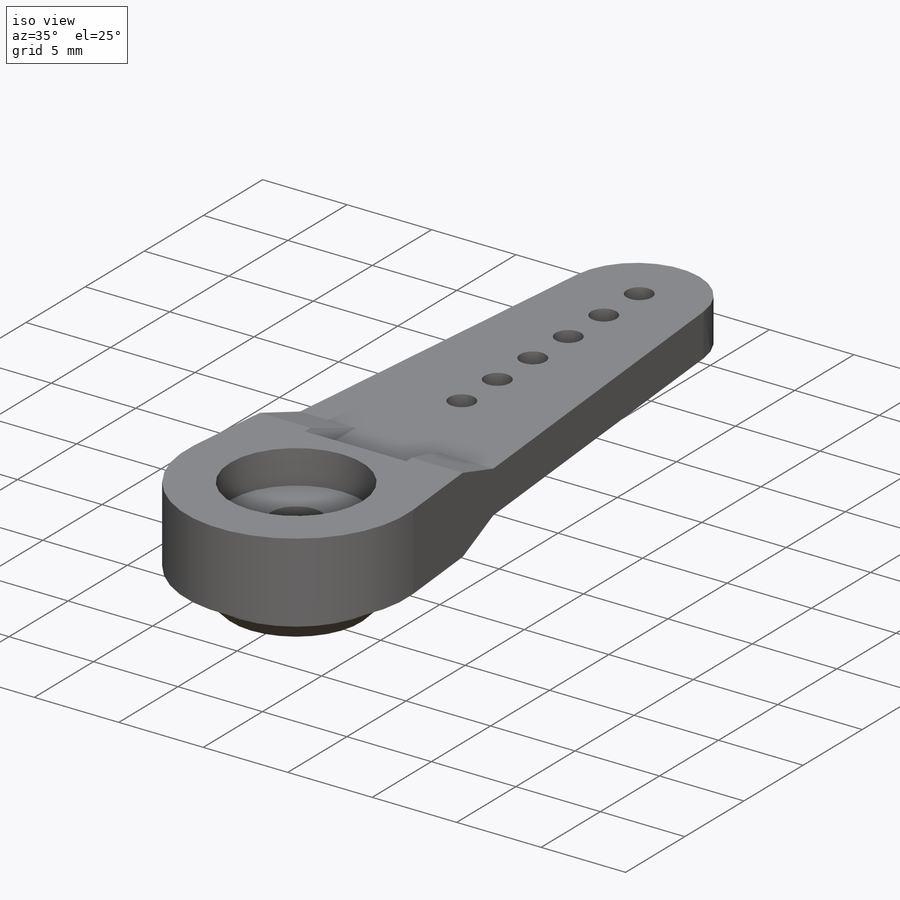
[diagram: iso view]
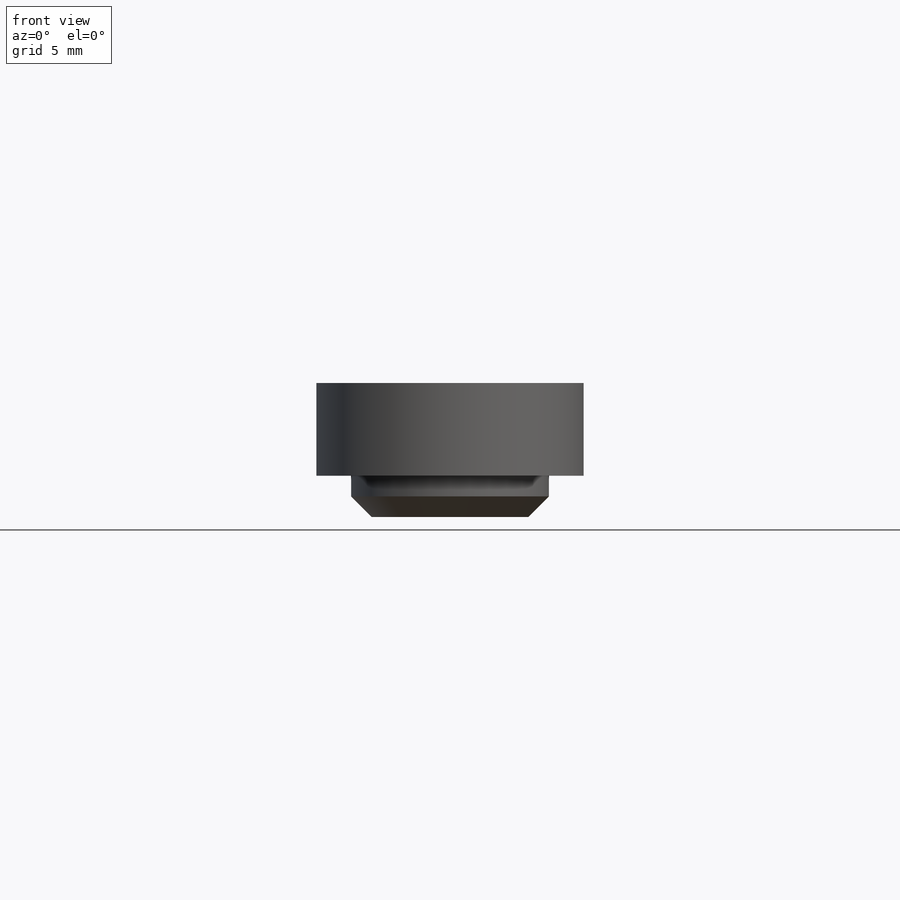
[diagram: front view]
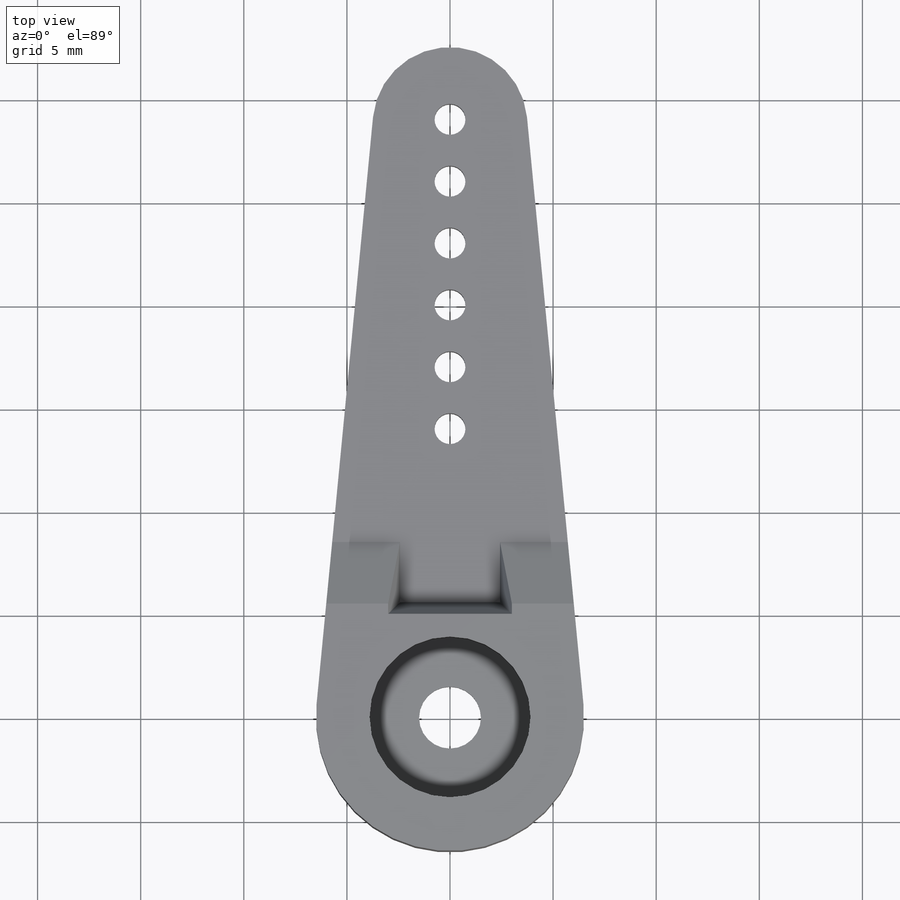
[diagram: top view]
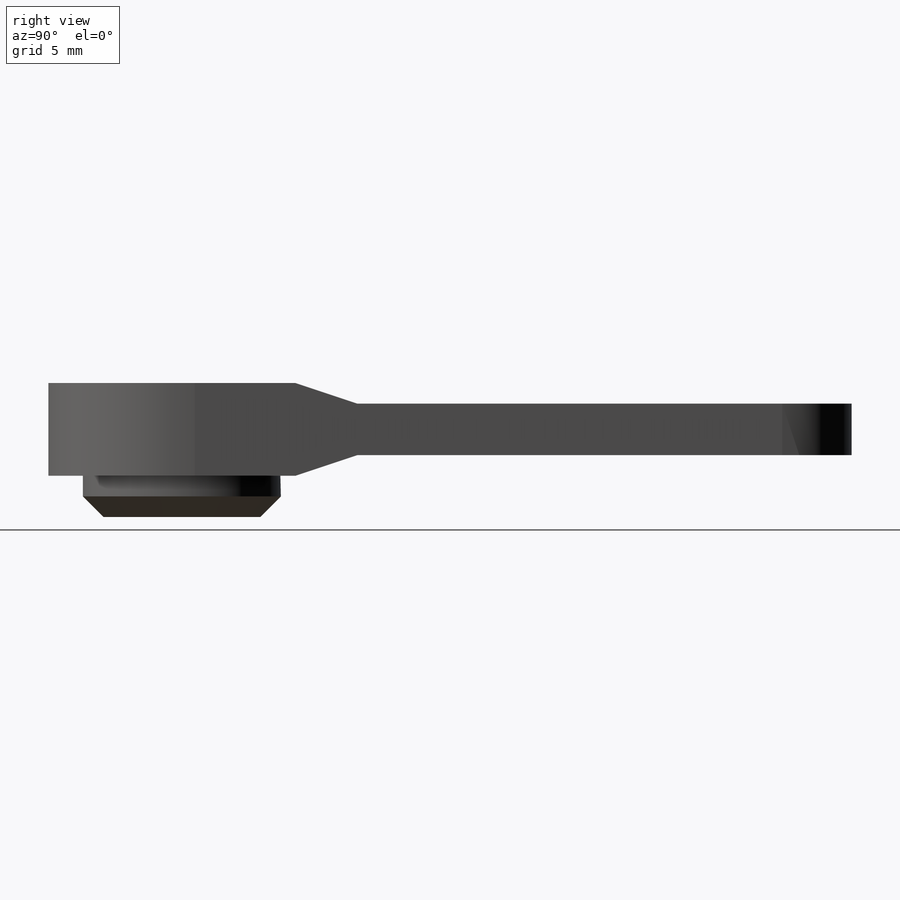
[diagram: right view]
SOLIDWORKS PART (.sldprt)
format: sldprt  version: not decoded by parser v0  size: 228,864 bytes
history: native  units: mm
features: sketch x7, cut_extrude x5, extrude x2, mirror x2, material x1, chamfer x1 (+12 scaffold rows collapsed)
feature tree (30):
  scaffold x12  (default folders/planes/origin — collapsed)
  material  "Material <not specified>"
  sketch  "Sketch1"  dims[c1.D1=6.5mm c1.D2=6.5mm c1.D3=3.75mm c1.D5=1.5mm c2.D2=39.0mm c2.D4=15.0mm c2.D6=14.0mm]
  extrude  "Boss-Extrude1"  Depth=4.5mm
  sketch  "Sketch2"  dims[D1=1.25mm D2=12.0mm D3=3.0mm]
  cut_extrude  "Cut-Extrude1"  Depth=14mm
  sketch  "Sketch3"  dims[D1=11.5mm D2=6.0mm]
  cut_extrude  "Cut-Extrude2"  [1 undecoded]
  mirror  "Mirror1"
  mirror  "Draft2"
  sketch  "Sketch4"  dims[D1=7.8mm]
  cut_extrude  "Cut-Extrude3"  Depth=2mm
  sketch  "Sketch5"  dims[D1=9.6mm]
  extrude  "Boss-Extrude2"  Depth=2mm
  chamfer  "Chamfer1"  Distance=1mm Angle=45deg
  sketch  "Sketch6"  dims[D1=6.0mm]
  cut_extrude  "Cut-Extrude4"  Depth=3.5mm
  sketch  "Sketch7"  dims[D1=3.0mm]
  cut_extrude  "Cut-Extrude5"  [1 undecoded]
decode coverage: 13 of 17 modeling features carry decoded parameters
note: 2 parameter values undecoded
note: suppression state not decoded; provenance and decode notes live in map.json
